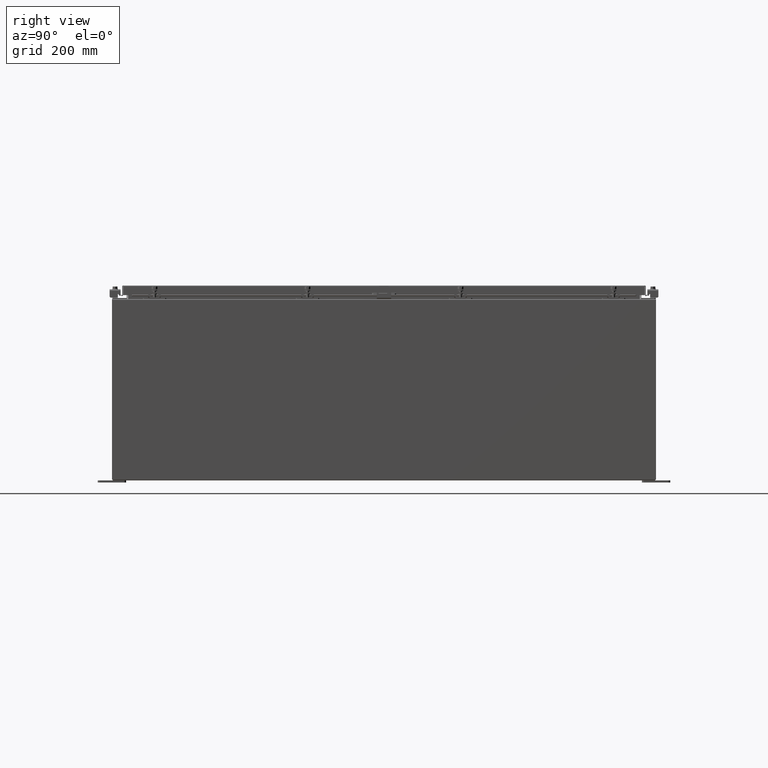
[diagram: clean part render]
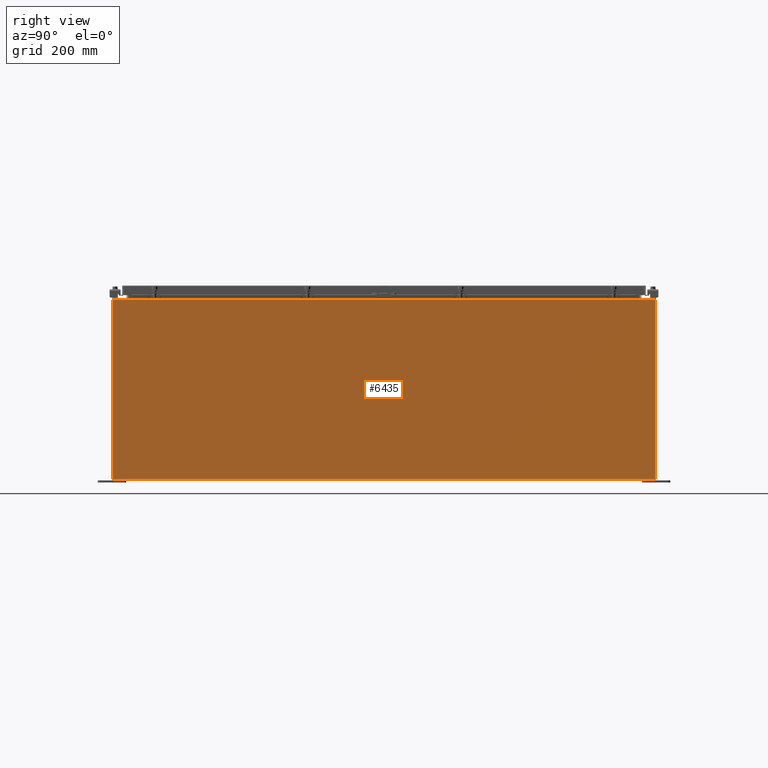
[diagram: same view with one face highlighted and labeled with its STEP entity id]
A machine part, right view. The second image highlights one B-rep face of the part: STEP entity #6435.
In plain terms, the highlighted planar face has unit normal (-1, 0, 0).
Its self-contained STEP definition (entity closure, byte-faithful):
#192 = CARTESIAN_POINT ( 'NONE',  ( 17.99999999999999600, 23.92529999999998900, -6.201571169367080700E-014 ) ) ;
#2105 = AXIS2_PLACEMENT_3D ( 'NONE', #35723, #6017, #12516 ) ;
#3326 = CARTESIAN_POINT ( 'NONE',  ( 17.99999999999999600, -23.92529999999998900, 0.01299999999999984700 ) ) ;
#3552 = CARTESIAN_POINT ( 'NONE',  ( 17.99999999999999600, -23.92529999999998900, -6.201571169367080700E-014 ) ) ;
#3754 = VERTEX_POINT ( 'NONE', #46089 ) ;
#4879 = ORIENTED_EDGE ( 'NONE', *, *, #47183, .T. ) ;
#5823 = VECTOR ( 'NONE', #8531, 39.37007874015748100 ) ;
#6017 = DIRECTION ( 'NONE',  ( -1.000000000000000000, 0.0000000000000000000, 3.430827668758846700E-015 ) ) ;
#6369 = CARTESIAN_POINT ( 'NONE',  ( 17.99999999999999600, -23.92529999999998900, 0.01299999999999898300 ) ) ;
#6435 = ADVANCED_FACE ( 'NONE', ( #41357 ), #42694, .F. ) ;
#6938 = LINE ( 'NONE', #3326, #49931 ) ;
#7070 = LINE ( 'NONE', #3552, #27995 ) ;
#7173 = CARTESIAN_POINT ( 'NONE',  ( 18.00000000000005000, 23.92529999999998600, 15.83760000000001400 ) ) ;
#8531 = DIRECTION ( 'NONE',  ( 3.430827668758847500E-015, 0.0000000000000000000, 1.000000000000000000 ) ) ;
#8752 = EDGE_CURVE ( 'NONE', #3754, #36855, #7070, .T. ) ;
#11736 = VERTEX_POINT ( 'NONE', #7173 ) ;
#12516 = DIRECTION ( 'NONE',  ( 3.430827668758846700E-015, 0.0000000000000000000, 1.000000000000000000 ) ) ;
#16817 = EDGE_LOOP ( 'NONE', ( #4879, #53260, #25014, #28974 ) ) ;
#21609 = LINE ( 'NONE', #40487, #31445 ) ;
#23897 = DIRECTION ( 'NONE',  ( -0.0000000000000000000, -1.000000000000000000, -0.0000000000000000000 ) ) ;
#24302 = DIRECTION ( 'NONE',  ( -1.566960444969418600E-031, -1.000000000000000000, -4.567295697298285000E-017 ) ) ;
#24539 = EDGE_CURVE ( 'NONE', #30762, #36855, #6938, .T. ) ;
#25014 = ORIENTED_EDGE ( 'NONE', *, *, #24539, .F. ) ;
#27995 = VECTOR ( 'NONE', #47301, 39.37007874015748100 ) ;
#28782 = CARTESIAN_POINT ( 'NONE',  ( 17.99999999999999600, 23.92529999999998600, 0.01300000000000203200 ) ) ;
#28974 = ORIENTED_EDGE ( 'NONE', *, *, #37735, .T. ) ;
#30762 = VERTEX_POINT ( 'NONE', #28782 ) ;
#31445 = VECTOR ( 'NONE', #23897, 39.37007874015748100 ) ;
#35723 = CARTESIAN_POINT ( 'NONE',  ( 17.99999999999999600, 0.0000000000000000000, -6.201571169367080700E-014 ) ) ;
#36855 = VERTEX_POINT ( 'NONE', #6369 ) ;
#37735 = EDGE_CURVE ( 'NONE', #30762, #11736, #39099, .T. ) ;
#39099 = LINE ( 'NONE', #192, #5823 ) ;
#40487 = CARTESIAN_POINT ( 'NONE',  ( 18.00000000000005000, 23.92529999999998900, 15.83760000000001400 ) ) ;
#41357 = FACE_OUTER_BOUND ( 'NONE', #16817, .T. ) ;
#42694 = PLANE ( 'NONE',  #2105 ) ;
#46089 = CARTESIAN_POINT ( 'NONE',  ( 18.00000000000005000, -23.92529999999998900, 15.83760000000000200 ) ) ;
#47183 = EDGE_CURVE ( 'NONE', #11736, #3754, #21609, .T. ) ;
#47301 = DIRECTION ( 'NONE',  ( -3.430827668758847500E-015, 0.0000000000000000000, -1.000000000000000000 ) ) ;
#49931 = VECTOR ( 'NONE', #24302, 39.37007874015748100 ) ;
#53260 = ORIENTED_EDGE ( 'NONE', *, *, #8752, .T. ) ;